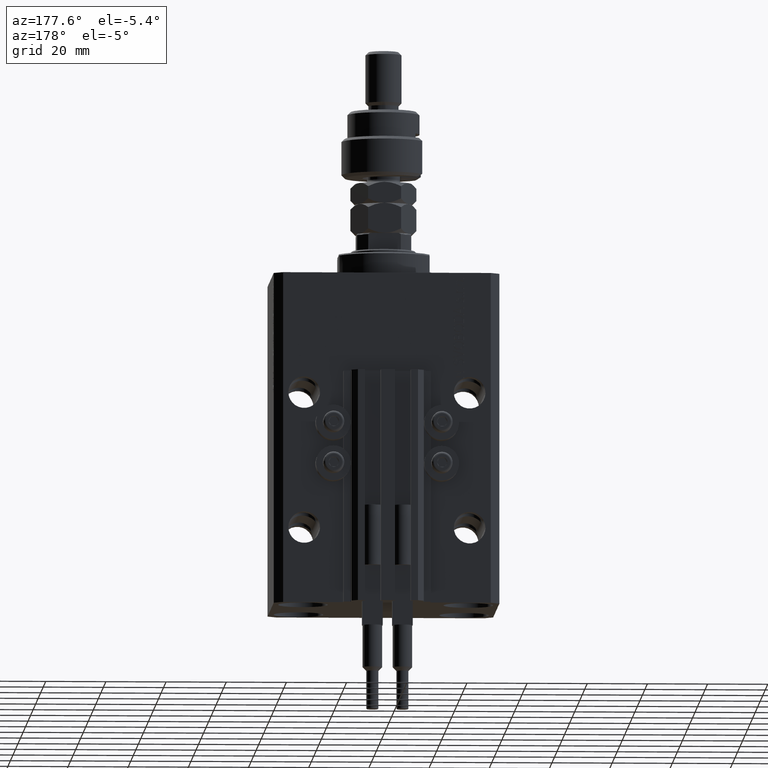
[diagram: clean part render]
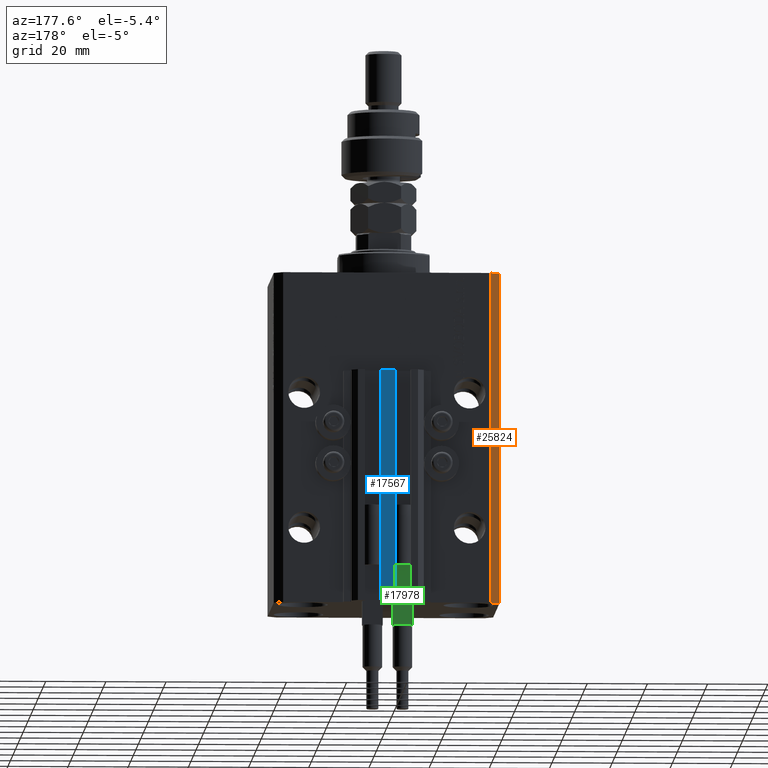
[diagram: same view with three faces highlighted in distinct colors, each labeled with its STEP entity id]
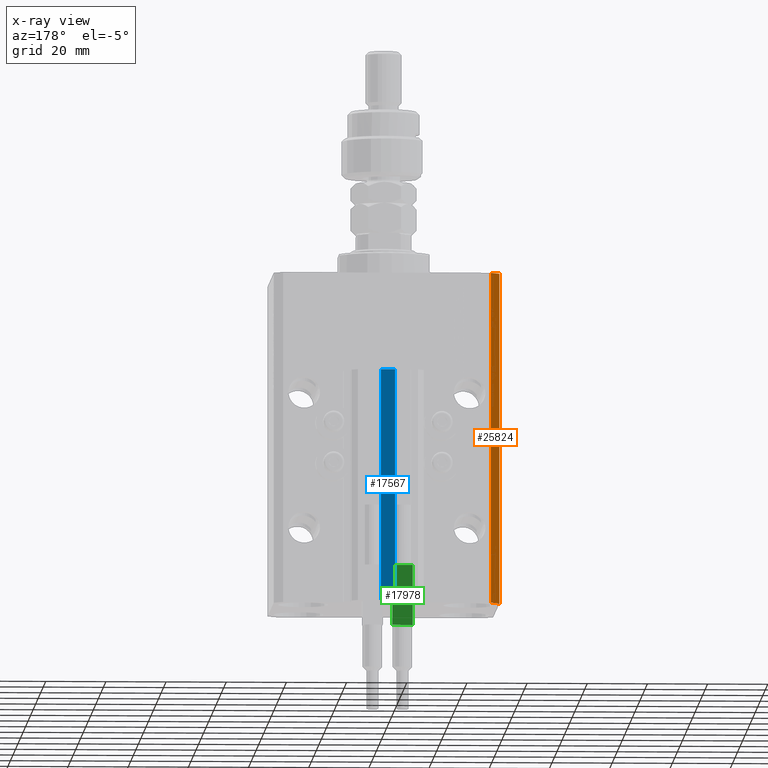
[diagram: x-ray of the same camera — body ghosted, the three highlighted faces saturated]
A machine part, auxiliary view with three faces highlighted in distinct colors.
The next image is the same camera in x-ray (body ghosted, the three faces saturated) — at least one of them is partly hidden behind the body in this view.
Their STEP definitions:

[orange] entity #25824 — the highlighted planar face has unit normal (-0.7071, 0.7071, 0).
#2253 = EDGE_CURVE ( 'NONE', #29494, #3278, #13348, .T. ) ;
#2647 = ORIENTED_EDGE ( 'NONE', *, *, #42793, .T. ) ;
#3278 = VERTEX_POINT ( 'NONE', #35868 ) ;
#6803 = FACE_OUTER_BOUND ( 'NONE', #20912, .T. ) ;
#10611 = DIRECTION ( 'NONE',  ( 0.000000000000000000, 0.000000000000000000, 1.000000000000000000 ) ) ;
#11758 = CARTESIAN_POINT ( 'NONE',  ( -34.49999999999999289, 27.50000000000000000, -110.0000000000000000 ) ) ;
#13348 = LINE ( 'NONE', #28565, #29308 ) ;
#14563 = DIRECTION ( 'NONE',  ( -0.7071067811865471286, -0.7071067811865479058, 0.000000000000000000 ) ) ;
#14745 = ORIENTED_EDGE ( 'NONE', *, *, #2253, .F. ) ;
#16401 = VERTEX_POINT ( 'NONE', #11758 ) ;
#18417 = PLANE ( 'NONE',  #19897 ) ;
#18558 = VERTEX_POINT ( 'NONE', #28036 ) ;
#19095 = CARTESIAN_POINT ( 'NONE',  ( -34.49999999999999289, 27.50000000000000000, -110.0000000000000000 ) ) ;
#19897 = AXIS2_PLACEMENT_3D ( 'NONE', #34168, #49119, #14563 ) ;
#20912 = EDGE_LOOP ( 'NONE', ( #14745, #34587, #2647, #31578 ) ) ;
#21113 = DIRECTION ( 'NONE',  ( -0.7071067811865471286, -0.7071067811865479058, 0.000000000000000000 ) ) ;
#22033 = VECTOR ( 'NONE', #21113, 1000.000000000000000 ) ;
#25431 = EDGE_CURVE ( 'NONE', #16401, #29494, #27620, .T. ) ;
#25824 = ADVANCED_FACE ( 'NONE', ( #6803 ), #18417, .T. ) ;
#27620 = LINE ( 'NONE', #28370, #36371 ) ;
#28036 = CARTESIAN_POINT ( 'NONE',  ( -37.49999999999999289, 24.50000000000000000, -110.0000000000000000 ) ) ;
#28370 = CARTESIAN_POINT ( 'NONE',  ( -34.49999999999999289, 27.50000000000000000, -110.0000000000000000 ) ) ;
#28565 = CARTESIAN_POINT ( 'NONE',  ( -34.49999999999999289, 27.50000000000000000, 0.000000000000000000 ) ) ;
#29308 = VECTOR ( 'NONE', #49174, 1000.000000000000000 ) ;
#29494 = VERTEX_POINT ( 'NONE', #31039 ) ;
#31039 = CARTESIAN_POINT ( 'NONE',  ( -34.49999999999999289, 27.50000000000000000, 0.000000000000000000 ) ) ;
#31252 = CARTESIAN_POINT ( 'NONE',  ( -37.49999999999999289, 24.50000000000000000, -110.0000000000000000 ) ) ;
#31578 = ORIENTED_EDGE ( 'NONE', *, *, #32229, .T. ) ;
#32229 = EDGE_CURVE ( 'NONE', #18558, #3278, #38728, .T. ) ;
#34168 = CARTESIAN_POINT ( 'NONE',  ( -34.49999999999999289, 27.50000000000000000, -110.0000000000000000 ) ) ;
#34587 = ORIENTED_EDGE ( 'NONE', *, *, #25431, .F. ) ;
#35868 = CARTESIAN_POINT ( 'NONE',  ( -37.49999999999999289, 24.50000000000000000, 0.000000000000000000 ) ) ;
#36371 = VECTOR ( 'NONE', #40230, 1000.000000000000000 ) ;
#38728 = LINE ( 'NONE', #31252, #50512 ) ;
#40230 = DIRECTION ( 'NONE',  ( 0.000000000000000000, 0.000000000000000000, 1.000000000000000000 ) ) ;
#42793 = EDGE_CURVE ( 'NONE', #16401, #18558, #43813, .T. ) ;
#43813 = LINE ( 'NONE', #19095, #22033 ) ;
#49119 = DIRECTION ( 'NONE',  ( -0.7071067811865479058, 0.7071067811865471286, 0.000000000000000000 ) ) ;
#49174 = DIRECTION ( 'NONE',  ( -0.7071067811865471286, -0.7071067811865479058, 0.000000000000000000 ) ) ;
#50512 = VECTOR ( 'NONE', #10611, 1000.000000000000000 ) ;

[blue] entity #17567 — the highlighted planar face has unit normal (0, -1, 0).
#113 = ORIENTED_EDGE ( 'NONE', *, *, #47998, .F. ) ;
#193 = PLANE ( 'NONE',  #44443 ) ;
#6674 = ORIENTED_EDGE ( 'NONE', *, *, #29159, .F. ) ;
#9394 = CARTESIAN_POINT ( 'NONE',  ( -2.350000000000003642, 35.50000000000001421, -33.00000000000000000 ) ) ;
#10574 = DIRECTION ( 'NONE',  ( 1.000000000000000000, 0.000000000000000000, 0.000000000000000000 ) ) ;
#11175 = LINE ( 'NONE', #26911, #20819 ) ;
#11640 = VERTEX_POINT ( 'NONE', #35099 ) ;
#11723 = LINE ( 'NONE', #19208, #37333 ) ;
#14377 = VERTEX_POINT ( 'NONE', #32632 ) ;
#15885 = VERTEX_POINT ( 'NONE', #50383 ) ;
#17567 = ADVANCED_FACE ( 'NONE', ( #43514 ), #193, .F. ) ;
#18140 = DIRECTION ( 'NONE',  ( 0.000000000000000000, 0.000000000000000000, 1.000000000000000000 ) ) ;
#19147 = ORIENTED_EDGE ( 'NONE', *, *, #28042, .T. ) ;
#19208 = CARTESIAN_POINT ( 'NONE',  ( 2.349999999999999645, 35.50000000000001421, -110.0000000000000000 ) ) ;
#20015 = VECTOR ( 'NONE', #10574, 1000.000000000000000 ) ;
#20819 = VECTOR ( 'NONE', #18140, 1000.000000000000000 ) ;
#23277 = CARTESIAN_POINT ( 'NONE',  ( -2.350000000000003642, 35.50000000000001421, -33.00000000000000000 ) ) ;
#25124 = DIRECTION ( 'NONE',  ( 1.000000000000000000, 0.000000000000000000, 0.000000000000000000 ) ) ;
#26561 = CARTESIAN_POINT ( 'NONE',  ( -2.350000000000003642, 35.50000000000001421, -110.0000000000000000 ) ) ;
#26911 = CARTESIAN_POINT ( 'NONE',  ( -2.350000000000003642, 35.50000000000001421, -110.0000000000000000 ) ) ;
#27332 = LINE ( 'NONE', #26561, #20015 ) ;
#28042 = EDGE_CURVE ( 'NONE', #15885, #50781, #11175, .T. ) ;
#29159 = EDGE_CURVE ( 'NONE', #14377, #11640, #11723, .T. ) ;
#30221 = EDGE_LOOP ( 'NONE', ( #40483, #6674, #113, #19147 ) ) ;
#30283 = LINE ( 'NONE', #9394, #38404 ) ;
#31912 = DIRECTION ( 'NONE',  ( 0.000000000000000000, -1.000000000000000000, 0.000000000000000000 ) ) ;
#32160 = DIRECTION ( 'NONE',  ( 0.000000000000000000, -0.000000000000000000, -1.000000000000000000 ) ) ;
#32632 = CARTESIAN_POINT ( 'NONE',  ( 2.349999999999999645, 35.50000000000001421, -110.0000000000000000 ) ) ;
#35099 = CARTESIAN_POINT ( 'NONE',  ( 2.349999999999999645, 35.50000000000001421, -33.00000000000000000 ) ) ;
#37333 = VECTOR ( 'NONE', #39321, 1000.000000000000000 ) ;
#38191 = EDGE_CURVE ( 'NONE', #50781, #11640, #30283, .T. ) ;
#38404 = VECTOR ( 'NONE', #25124, 1000.000000000000000 ) ;
#39321 = DIRECTION ( 'NONE',  ( 0.000000000000000000, 0.000000000000000000, 1.000000000000000000 ) ) ;
#40483 = ORIENTED_EDGE ( 'NONE', *, *, #38191, .T. ) ;
#43514 = FACE_OUTER_BOUND ( 'NONE', #30221, .T. ) ;
#44009 = CARTESIAN_POINT ( 'NONE',  ( -2.350000000000003642, 35.50000000000001421, -110.0000000000000000 ) ) ;
#44443 = AXIS2_PLACEMENT_3D ( 'NONE', #44009, #31912, #32160 ) ;
#47998 = EDGE_CURVE ( 'NONE', #15885, #14377, #27332, .T. ) ;
#50383 = CARTESIAN_POINT ( 'NONE',  ( -2.350000000000003642, 35.50000000000001421, -110.0000000000000000 ) ) ;
#50781 = VERTEX_POINT ( 'NONE', #23277 ) ;

[green] entity #17978 — the highlighted planar face has unit normal (0, -1, 0).
#740 = EDGE_CURVE ( 'NONE', #31828, #19373, #27606, .T. ) ;
#934 = DIRECTION ( 'NONE',  ( -1.000000000000000000, -0.000000000000000000, -0.000000000000000000 ) ) ;
#2592 = EDGE_CURVE ( 'NONE', #19373, #28466, #25148, .T. ) ;
#2998 = CARTESIAN_POINT ( 'NONE',  ( -3.051229260478471428, 1.500000000000000000, 20.00000000000000000 ) ) ;
#3251 = EDGE_CURVE ( 'NONE', #5483, #18802, #24502, .T. ) ;
#5483 = VERTEX_POINT ( 'NONE', #8067 ) ;
#5523 = FACE_OUTER_BOUND ( 'NONE', #6254, .T. ) ;
#5791 = DIRECTION ( 'NONE',  ( -0.000000000000000000, -0.000000000000000000, -1.000000000000000000 ) ) ;
#6254 = EDGE_LOOP ( 'NONE', ( #47240, #44900, #48486, #35050, #19624, #9822, #41650, #23123 ) ) ;
#7538 = VECTOR ( 'NONE', #30040, 1000.000000000000000 ) ;
#7741 = CARTESIAN_POINT ( 'NONE',  ( -3.399999999999999911, 1.500000000000000000, 20.00000000000000000 ) ) ;
#8067 = CARTESIAN_POINT ( 'NONE',  ( 3.051229260478471428, 1.500000000000000000, 20.00000000000000000 ) ) ;
#8284 = VERTEX_POINT ( 'NONE', #40301 ) ;
#9674 = CARTESIAN_POINT ( 'NONE',  ( -3.399999999999999911, 1.500000000000000000, 40.00000000000000000 ) ) ;
#9822 = ORIENTED_EDGE ( 'NONE', *, *, #25712, .F. ) ;
#10167 = LINE ( 'NONE', #25901, #7538 ) ;
#10225 = CARTESIAN_POINT ( 'NONE',  ( -2.883140648667699146, 1.500000000000000000, 40.00000000000000000 ) ) ;
#11098 = EDGE_CURVE ( 'NONE', #18802, #28466, #40575, .T. ) ;
#12726 = VECTOR ( 'NONE', #15676, 1000.000000000000000 ) ;
#15676 = DIRECTION ( 'NONE',  ( -1.000000000000000000, -0.000000000000000000, -0.000000000000000000 ) ) ;
#17978 = ADVANCED_FACE ( 'NONE', ( #5523 ), #20986, .F. ) ;
#18802 = VERTEX_POINT ( 'NONE', #2998 ) ;
#19373 = VERTEX_POINT ( 'NONE', #30223 ) ;
#19624 = ORIENTED_EDGE ( 'NONE', *, *, #740, .F. ) ;
#20584 = EDGE_CURVE ( 'NONE', #36127, #8284, #26789, .T. ) ;
#20986 = PLANE ( 'NONE',  #33856 ) ;
#21477 = CARTESIAN_POINT ( 'NONE',  ( -3.399999999999999911, 1.500000000000000000, 20.00000000000000000 ) ) ;
#23014 = VECTOR ( 'NONE', #30931, 1000.000000000000000 ) ;
#23123 = ORIENTED_EDGE ( 'NONE', *, *, #20584, .T. ) ;
#23724 = CARTESIAN_POINT ( 'NONE',  ( -3.399999999999999911, 1.500000000000000000, 40.00000000000000000 ) ) ;
#24502 = LINE ( 'NONE', #25283, #35910 ) ;
#25148 = LINE ( 'NONE', #9674, #34283 ) ;
#25283 = CARTESIAN_POINT ( 'NONE',  ( -3.399999999999999911, 1.500000000000000000, 20.00000000000000000 ) ) ;
#25712 = EDGE_CURVE ( 'NONE', #28496, #31828, #10167, .T. ) ;
#25901 = CARTESIAN_POINT ( 'NONE',  ( -3.399999999999999911, 1.500000000000000000, 40.00000000000000000 ) ) ;
#26229 = VECTOR ( 'NONE', #33367, 1000.000000000000000 ) ;
#26789 = LINE ( 'NONE', #50251, #23014 ) ;
#27035 = LINE ( 'NONE', #35530, #12726 ) ;
#27606 = LINE ( 'NONE', #23724, #38285 ) ;
#28466 = VERTEX_POINT ( 'NONE', #7741 ) ;
#28496 = VERTEX_POINT ( 'NONE', #42840 ) ;
#29160 = DIRECTION ( 'NONE',  ( -1.000000000000000000, -0.000000000000000000, -0.000000000000000000 ) ) ;
#30040 = DIRECTION ( 'NONE',  ( -1.000000000000000000, -0.000000000000000000, -0.000000000000000000 ) ) ;
#30223 = CARTESIAN_POINT ( 'NONE',  ( -3.399999999999999911, 1.500000000000000000, 40.00000000000000000 ) ) ;
#30931 = DIRECTION ( 'NONE',  ( -0.000000000000000000, -0.000000000000000000, -1.000000000000000000 ) ) ;
#31828 = VERTEX_POINT ( 'NONE', #10225 ) ;
#32879 = DIRECTION ( 'NONE',  ( 0.000000000000000000, -1.000000000000000000, 0.000000000000000000 ) ) ;
#32934 = CARTESIAN_POINT ( 'NONE',  ( -3.399999999999999911, 1.500000000000000000, 40.00000000000000000 ) ) ;
#33367 = DIRECTION ( 'NONE',  ( -1.000000000000000000, -0.000000000000000000, -0.000000000000000000 ) ) ;
#33385 = DIRECTION ( 'NONE',  ( 0.000000000000000000, -0.000000000000000000, -1.000000000000000000 ) ) ;
#33856 = AXIS2_PLACEMENT_3D ( 'NONE', #36732, #32879, #33385 ) ;
#34283 = VECTOR ( 'NONE', #5791, 1000.000000000000000 ) ;
#35050 = ORIENTED_EDGE ( 'NONE', *, *, #2592, .F. ) ;
#35530 = CARTESIAN_POINT ( 'NONE',  ( -3.399999999999999911, 1.500000000000000000, 20.00000000000000000 ) ) ;
#35910 = VECTOR ( 'NONE', #29160, 1000.000000000000000 ) ;
#36127 = VERTEX_POINT ( 'NONE', #45591 ) ;
#36306 = EDGE_CURVE ( 'NONE', #36127, #28496, #44785, .T. ) ;
#36732 = CARTESIAN_POINT ( 'NONE',  ( -3.399999999999999911, 1.500000000000000000, 40.00000000000000000 ) ) ;
#37466 = VECTOR ( 'NONE', #934, 1000.000000000000000 ) ;
#38285 = VECTOR ( 'NONE', #47940, 1000.000000000000000 ) ;
#40301 = CARTESIAN_POINT ( 'NONE',  ( 3.400000000000000355, 1.500000000000000000, 20.00000000000000000 ) ) ;
#40575 = LINE ( 'NONE', #21477, #26229 ) ;
#41650 = ORIENTED_EDGE ( 'NONE', *, *, #36306, .F. ) ;
#42840 = CARTESIAN_POINT ( 'NONE',  ( 2.883140648667699146, 1.500000000000000000, 40.00000000000000000 ) ) ;
#44785 = LINE ( 'NONE', #32934, #37466 ) ;
#44900 = ORIENTED_EDGE ( 'NONE', *, *, #3251, .T. ) ;
#45591 = CARTESIAN_POINT ( 'NONE',  ( 3.400000000000000355, 1.500000000000000000, 40.00000000000000000 ) ) ;
#47240 = ORIENTED_EDGE ( 'NONE', *, *, #50526, .T. ) ;
#47940 = DIRECTION ( 'NONE',  ( -1.000000000000000000, -0.000000000000000000, -0.000000000000000000 ) ) ;
#48486 = ORIENTED_EDGE ( 'NONE', *, *, #11098, .T. ) ;
#50251 = CARTESIAN_POINT ( 'NONE',  ( 3.400000000000000355, 1.500000000000000000, 40.00000000000000000 ) ) ;
#50526 = EDGE_CURVE ( 'NONE', #8284, #5483, #27035, .T. ) ;